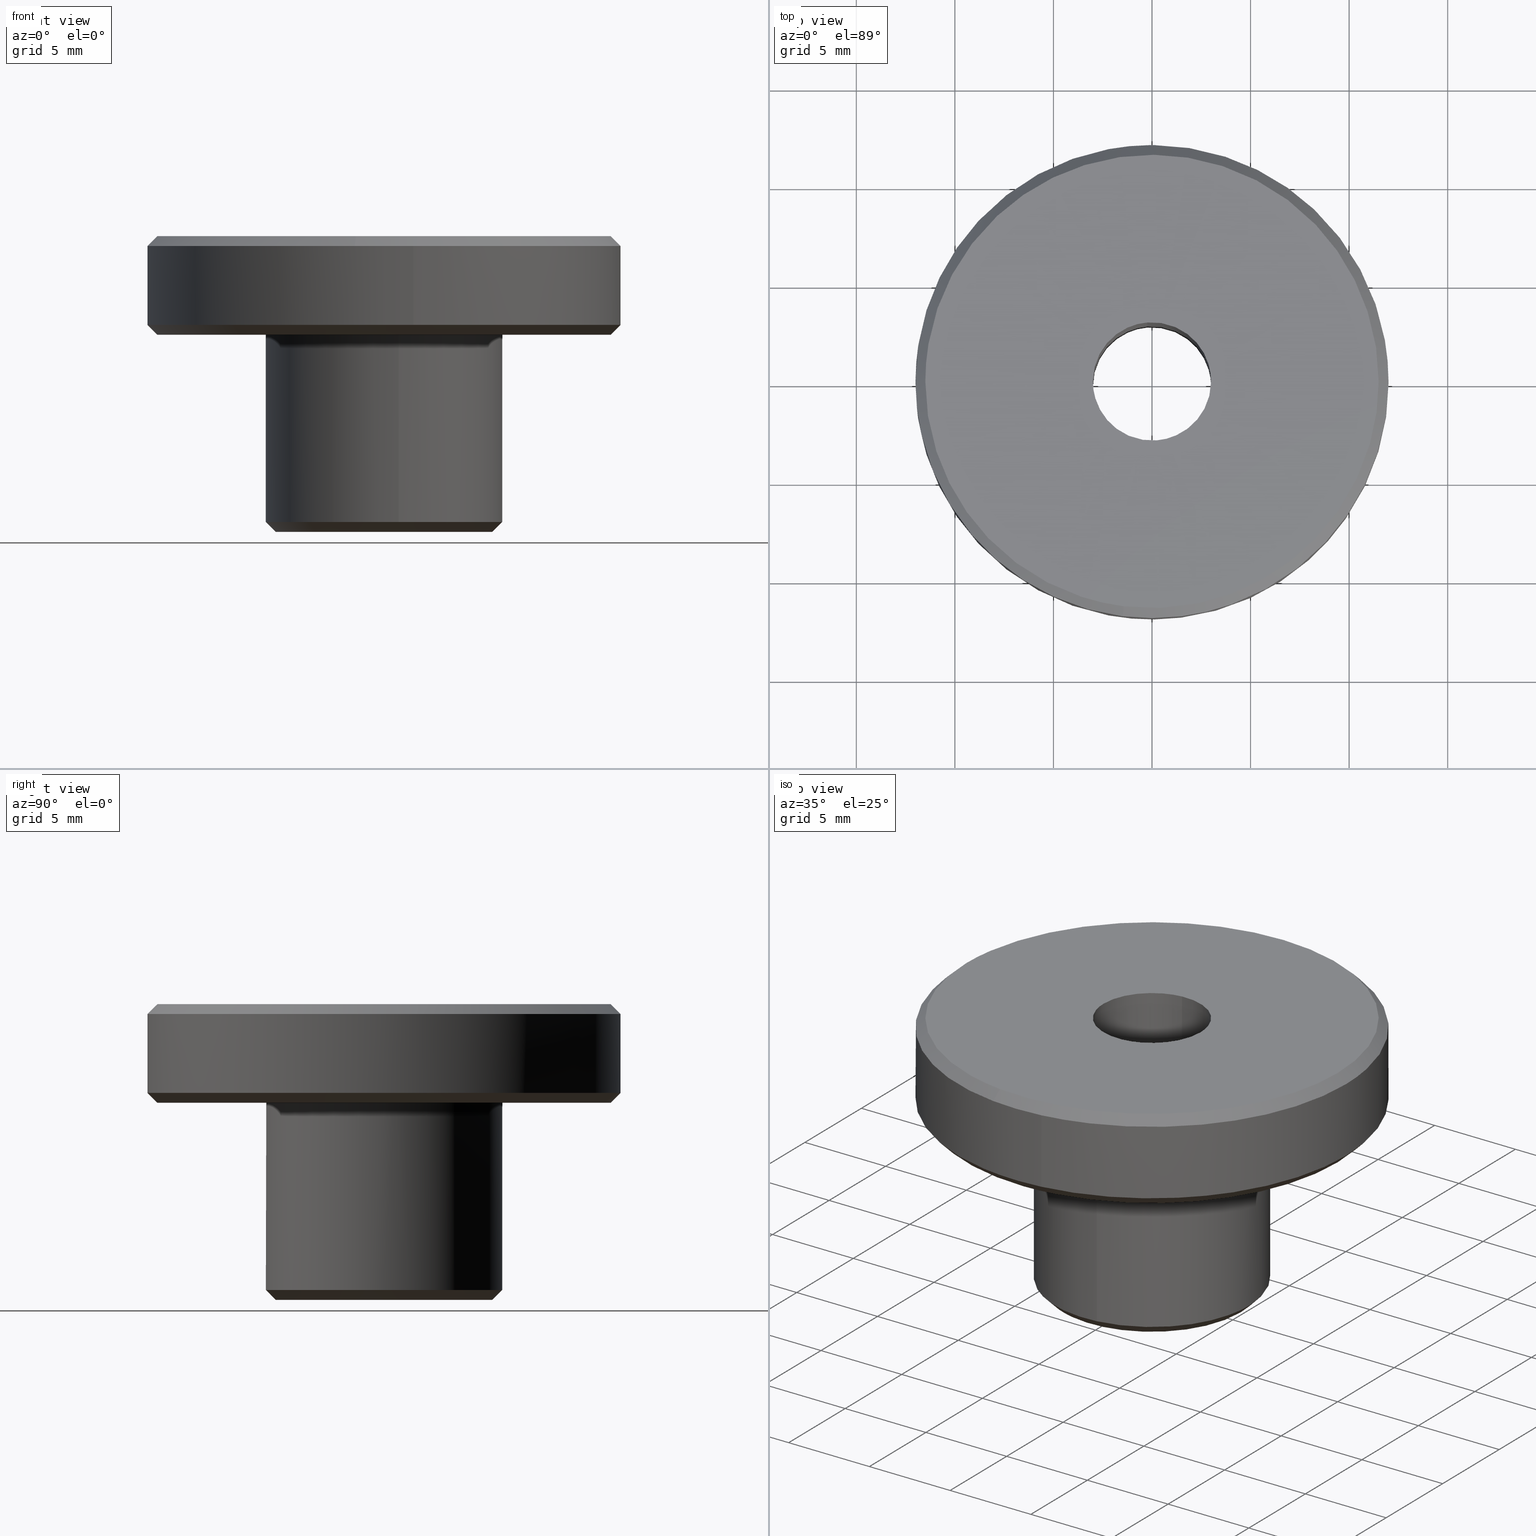
[diagram: canonical four-view strip — front | top / right | iso, engineering-drawing reading convention]
A machine part, canonical four-view strip (front | top / right | iso — engineering-drawing reading convention). The complete STEP part file that produces these views, byte-faithful:
ISO-10303-21;
HEADER;
/****************************************************************
 * Generated by software with PDE/Lib inside                    *
 * PDElib Version 4.4.1-0003, patched  Thursday August 19 11:58 *
 * International Technegroup Inc. (www.iti-oh.com)              *
 ****************************************************************/
FILE_DESCRIPTION((''),'2;1');
FILE_NAME('','2005-07-15T10:43:15',(''),(''),'','CADfix','');
FILE_SCHEMA(('AUTOMOTIVE_DESIGN'));
ENDSEC;
DATA;
#5=APPLICATION_CONTEXT('automotive design');
#6=APPLICATION_PROTOCOL_DEFINITION('Draft International Standard','automotive_design',1998,#5);
#7=PRODUCT_CONTEXT('None',#5,'mechanical');
#8=PRODUCT('knob','','None',(#7));
#9=PRODUCT_RELATED_PRODUCT_CATEGORY('part','description',(#8));
#10=PRODUCT_DEFINITION_FORMATION('None','None',#8);
#11=PRODUCT_DEFINITION_CONTEXT('part definition',#5,'design');
#12=PRODUCT_DEFINITION('None','None',#10,#11);
#18=(NAMED_UNIT(*)PLANE_ANGLE_UNIT()SI_UNIT($,.RADIAN.));
#19=DIMENSIONAL_EXPONENTS(0.0,0.0,0.0,0.0,0.0,0.0,0.0);
#20=PLANE_ANGLE_MEASURE_WITH_UNIT(PLANE_ANGLE_MEASURE(0.017453292500000),#18);
#24=(CONVERSION_BASED_UNIT('DEGREE',#20)NAMED_UNIT(#19)PLANE_ANGLE_UNIT());
#28=(NAMED_UNIT(*)SI_UNIT($,.STERADIAN.)SOLID_ANGLE_UNIT());
#32=(LENGTH_UNIT()NAMED_UNIT(*)SI_UNIT(.MILLI.,.METRE.));
#34=UNCERTAINTY_MEASURE_WITH_UNIT(LENGTH_MEASURE(0.001000000000000),#32,'DISTANCE_ACCURACY_VALUE','');
#36=(GEOMETRIC_REPRESENTATION_CONTEXT(3)GLOBAL_UNCERTAINTY_ASSIGNED_CONTEXT((#34))GLOBAL_UNIT_ASSIGNED_CONTEXT((#24,#28,#32))REPRESENTATION_CONTEXT('None','None'));
#37=AXIS2_PLACEMENT_3D('',#38,#39,#40);
#38=CARTESIAN_POINT('',(0.0,0.0,0.0));
#39=DIRECTION('',(0.0,0.0,1.0));
#40=DIRECTION('',(1.0,0.0,0.0));
#41=ADVANCED_BREP_SHAPE_REPRESENTATION('',(#37,#1111),#36);
#42=PRODUCT_DEFINITION_SHAPE('','',#12);
#43=SHAPE_DEFINITION_REPRESENTATION(#42,#41);
#44=CARTESIAN_POINT('',(-1.425920423892046,-11.398658131320925,15.012499999999999));
#45=CARTESIAN_POINT('',(-11.576330890396889,-10.128887827805423,15.012499999999998));
#46=CARTESIAN_POINT('',(-11.487062591199720,0.100246076537571,15.012499999999999));
#47=CARTESIAN_POINT('',(-11.386816514662147,11.587308667737290,15.012500000000008));
#48=CARTESIAN_POINT('',(0.100246076537571,11.487062591199720,15.012499999999999));
#49=CARTESIAN_POINT('',(-1.491126414984599,-11.919907976771100,14.487187499999999));
#50=CARTESIAN_POINT('',(-12.105705542920147,-10.592072279343483,14.487187500000003));
#51=CARTESIAN_POINT('',(-12.012355088909310,0.104830234716560,14.487187499999999));
#52=CARTESIAN_POINT('',(-11.907524854192753,12.117185323625870,14.487187500000005));
#53=CARTESIAN_POINT('',(0.104830234716560,12.012355088909310,14.487187499999999));
#61=(BOUNDED_SURFACE()B_SPLINE_SURFACE(2,1,((#44,#49),(#45,#50),(#46,#51),(#47,#52),(#48,#53)),.UNSPECIFIED.,.F.,.F.,.U.)B_SPLINE_SURFACE_WITH_KNOTS((3,2,3),(2,2),(0.0,18.311201083861761,38.214680522841952),(0.0,1.0),.UNSPECIFIED.)GEOMETRIC_REPRESENTATION_ITEM()RATIONAL_B_SPLINE_SURFACE(((0.956886118190660,0.956886118190660),(0.730538238691624,0.730538238691624),(1.0,1.0),(0.707106781186548,0.707106781186548),(1.0,1.0)))REPRESENTATION_ITEM('')SURFACE());
#62=CARTESIAN_POINT('',(-1.489536024977577,-11.907194565906501,14.499999999997531));
#63=VERTEX_POINT('',#62);
#64=CARTESIAN_POINT('',(-12.0,0.0,14.500000000000000));
#65=VERTEX_POINT('',#64);
#66=CARTESIAN_POINT('',(-1.489536024977576,-11.907194565906503,14.499999999997526));
#67=CARTESIAN_POINT('',(-12.000000000000002,-10.592383201768106,14.500000000000009));
#68=CARTESIAN_POINT('',(-12.0,0.0,14.500000000000000));
#76=(BOUNDED_CURVE()B_SPLINE_CURVE(2,(#66,#67,#68),.UNSPECIFIED.,.F.,.U.)B_SPLINE_CURVE_WITH_KNOTS((3,3),(0.771473928971248,1.0),.UNSPECIFIED.)CURVE()GEOMETRIC_REPRESENTATION_ITEM()RATIONAL_B_SPLINE_CURVE((0.954005430273657,0.732265053894389,1.0))REPRESENTATION_ITEM(''));
#77=EDGE_CURVE('',#63,#65,#76,.T.);
#78=ORIENTED_EDGE('',*,*,#77,.F.);
#79=CARTESIAN_POINT('',(-1.427472023938972,-11.411061458993739,14.999999999997380));
#80=VERTEX_POINT('',#79);
#81=CARTESIAN_POINT('',(-1.427472023938972,-11.411061458993739,14.999999999997380));
#82=CARTESIAN_POINT('',(-1.489536024977577,-11.907194565906501,14.499999999997531));
#83=QUASI_UNIFORM_CURVE('',1,(#81,#82),.UNSPECIFIED.,.F.,.U.);
#84=EDGE_CURVE('',#80,#63,#83,.T.);
#85=ORIENTED_EDGE('',*,*,#84,.F.);
#86=CARTESIAN_POINT('',(-11.500000000000000,0.0,15.0));
#87=VERTEX_POINT('',#86);
#88=CARTESIAN_POINT('',(-11.500000000000000,0.0,15.0));
#89=CARTESIAN_POINT('',(-11.500000000000000,-10.151033901690676,15.000000000000007));
#90=CARTESIAN_POINT('',(-1.427472023938972,-11.411061458993739,14.999999999997383));
#98=(BOUNDED_CURVE()B_SPLINE_CURVE(2,(#88,#89,#90),.UNSPECIFIED.,.F.,.U.)B_SPLINE_CURVE_WITH_KNOTS((3,3),(0.500000000000000,0.728526071028690),.UNSPECIFIED.)CURVE()GEOMETRIC_REPRESENTATION_ITEM()RATIONAL_B_SPLINE_CURVE((1.0,0.732265053894462,0.954005430273536))REPRESENTATION_ITEM(''));
#99=EDGE_CURVE('',#87,#80,#98,.T.);
#100=ORIENTED_EDGE('',*,*,#99,.F.);
#101=CARTESIAN_POINT('',(0.100355158253234,11.499562115240780,14.999999999997030));
#102=VERTEX_POINT('',#101);
#103=CARTESIAN_POINT('',(0.100355158253234,11.499562115240781,14.999999999997030));
#104=CARTESIAN_POINT('',(0.050178534459976,11.500000000000004,15.000000000000004));
#105=CARTESIAN_POINT('',(0.0,11.500000000000000,15.0));
#106=CARTESIAN_POINT('',(-11.500000000000000,11.500000000000000,14.999999999999995));
#107=CARTESIAN_POINT('',(-11.500000000000000,0.0,15.0));
#115=(BOUNDED_CURVE()B_SPLINE_CURVE(2,(#103,#104,#105,#106,#107),.UNSPECIFIED.,.F.,.U.)B_SPLINE_CURVE_WITH_KNOTS((3,2,3),(0.248460105664342,0.250000000000000,0.500000000000000),.UNSPECIFIED.)CURVE()GEOMETRIC_REPRESENTATION_ITEM()RATIONAL_B_SPLINE_CURVE((0.996414028098853,0.998195901565586,1.0,0.707106781186548,1.0))REPRESENTATION_ITEM(''));
#116=EDGE_CURVE('',#102,#87,#115,.T.);
#117=ORIENTED_EDGE('',*,*,#116,.F.);
#118=CARTESIAN_POINT('',(0.104718426017089,11.999543076774710,14.499999999995021));
#119=VERTEX_POINT('',#118);
#120=CARTESIAN_POINT('',(0.100355158253234,11.499562115240780,14.999999999997030));
#121=CARTESIAN_POINT('',(0.104718426017089,11.999543076774710,14.499999999995021));
#122=QUASI_UNIFORM_CURVE('',1,(#120,#121),.UNSPECIFIED.,.F.,.U.);
#123=EDGE_CURVE('',#102,#119,#122,.T.);
#124=ORIENTED_EDGE('',*,*,#123,.T.);
#125=CARTESIAN_POINT('',(-0.104710458545633,11.999543146295510,14.500000000000030));
#126=VERTEX_POINT('',#125);
#127=CARTESIAN_POINT('',(-0.104710458545633,11.999543146295510,14.500000000000037));
#128=CARTESIAN_POINT('',(-0.052356225903478,12.000000000000004,14.500000000000004));
#129=CARTESIAN_POINT('',(0.0,12.0,14.500000000000000));
#130=CARTESIAN_POINT('',(0.052360209884988,11.999999999999998,14.500000000000002));
#131=CARTESIAN_POINT('',(0.104718426017089,11.999543076774717,14.499999999995023));
#139=(BOUNDED_CURVE()B_SPLINE_CURVE(2,(#127,#128,#129,#130,#131),.UNSPECIFIED.,.F.,.U.)B_SPLINE_CURVE_WITH_KNOTS((3,2,3),(0.248460222619991,0.250000000000000,0.251539894336061),.UNSPECIFIED.)CURVE()GEOMETRIC_REPRESENTATION_ITEM()RATIONAL_B_SPLINE_CURVE((0.996414298767122,0.998196038587652,1.0,0.998195901565114,0.996414028097921))REPRESENTATION_ITEM(''));
#140=EDGE_CURVE('',#126,#119,#139,.T.);
#141=ORIENTED_EDGE('',*,*,#140,.F.);
#142=CARTESIAN_POINT('',(-12.0,0.0,14.500000000000000));
#143=CARTESIAN_POINT('',(-12.0,11.895742425951299,14.499999999999996));
#144=CARTESIAN_POINT('',(-0.104710458545633,11.999543146295510,14.500000000000037));
#152=(BOUNDED_CURVE()B_SPLINE_CURVE(2,(#142,#143,#144),.UNSPECIFIED.,.F.,.U.)B_SPLINE_CURVE_WITH_KNOTS((3,3),(0.0,0.248460222619991),.UNSPECIFIED.)CURVE()GEOMETRIC_REPRESENTATION_ITEM()RATIONAL_B_SPLINE_CURVE((1.0,0.708910742598895,0.996414298767122))REPRESENTATION_ITEM(''));
#153=EDGE_CURVE('',#65,#126,#152,.T.);
#154=ORIENTED_EDGE('',*,*,#153,.F.);
#155=EDGE_LOOP('',(#78,#85,#100,#117,#124,#141,#154));
#156=FACE_OUTER_BOUND('',#155,.T.);
#157=ADVANCED_FACE('',(#156),#61,.T.);
#158=CARTESIAN_POINT('',(0.100246076537571,11.487062591199720,15.012499999999999));
#159=CARTESIAN_POINT('',(11.587308667737290,11.386816514662147,15.012500000000008));
#160=CARTESIAN_POINT('',(11.487062591199720,-0.100246076537571,15.012499999999999));
#161=CARTESIAN_POINT('',(11.386816514662147,-11.587308667737290,15.012500000000008));
#162=CARTESIAN_POINT('',(-0.100246076537571,-11.487062591199720,15.012499999999999));
#163=CARTESIAN_POINT('',(-0.765643701032023,-11.481255754102474,15.012500000000005));
#164=CARTESIAN_POINT('',(-1.425920423892046,-11.398658131320925,15.012499999999999));
#165=CARTESIAN_POINT('',(0.104830234716560,12.012355088909310,14.487187499999999));
#166=CARTESIAN_POINT('',(12.117185323625870,11.907524854192753,14.487187500000005));
#167=CARTESIAN_POINT('',(12.012355088909310,-0.104830234716560,14.487187499999999));
#168=CARTESIAN_POINT('',(11.907524854192753,-12.117185323625870,14.487187500000005));
#169=CARTESIAN_POINT('',(-0.104830234716560,-12.012355088909310,14.487187499999999));
#170=CARTESIAN_POINT('',(-0.800655862659735,-12.006282710648829,14.487187499999999));
#171=CARTESIAN_POINT('',(-1.491126414984599,-11.919907976771100,14.487187499999999));
#179=(BOUNDED_SURFACE()B_SPLINE_SURFACE(2,1,((#158,#165),(#159,#166),(#160,#167),(#161,#168),(#162,#169),(#163,#170),(#164,#171)),.UNSPECIFIED.,.F.,.F.,.U.)B_SPLINE_SURFACE_WITH_KNOTS((3,2,2,3),(2,2),(0.0,19.903479438980181,39.806958877960362,41.399237233078779),(0.0,1.0),.UNSPECIFIED.)GEOMETRIC_REPRESENTATION_ITEM()RATIONAL_B_SPLINE_SURFACE(((1.0,1.0),(0.707106781186548,0.707106781186548),(1.0,1.0),(0.707106781186548,0.707106781186548),(1.0,1.0),(0.976568542494924,0.976568542494924),(0.956886118190660,0.956886118190660)))REPRESENTATION_ITEM('')SURFACE());
#180=CARTESIAN_POINT('',(1.489536029010390,-11.907194565399520,14.500000000000000));
#181=VERTEX_POINT('',#180);
#182=CARTESIAN_POINT('',(1.489536029010390,-11.907194565399525,14.499999999999998));
#183=CARTESIAN_POINT('',(0.747659134501809,-11.999999999999996,14.500000000000007));
#184=CARTESIAN_POINT('',(0.0,-12.0,14.500000000000000));
#185=CARTESIAN_POINT('',(-0.747659130421445,-11.999999999999996,14.499999999999998));
#186=CARTESIAN_POINT('',(-1.489536024977577,-11.907194565906501,14.499999999997529));
#194=(BOUNDED_CURVE()B_SPLINE_CURVE(2,(#182,#183,#184,#185,#186),.UNSPECIFIED.,.F.,.U.)B_SPLINE_CURVE_WITH_KNOTS((3,2,3),(0.728526070914507,0.750000000000000,0.771473928971248),.UNSPECIFIED.)CURVE()GEOMETRIC_REPRESENTATION_ITEM()RATIONAL_B_SPLINE_CURVE((0.954005430051951,0.974841727158312,1.0,0.974841727292159,0.954005430273658))REPRESENTATION_ITEM(''));
#195=EDGE_CURVE('',#181,#63,#194,.T.);
#196=ORIENTED_EDGE('',*,*,#195,.F.);
#197=CARTESIAN_POINT('',(12.0,0.0,14.500000000000000));
#198=VERTEX_POINT('',#197);
#199=CARTESIAN_POINT('',(12.0,0.0,14.500000000000000));
#200=CARTESIAN_POINT('',(12.0,-10.592383194536700,14.500000000000004));
#201=CARTESIAN_POINT('',(1.489536029010390,-11.907194565399520,14.499999999999996));
#209=(BOUNDED_CURVE()B_SPLINE_CURVE(2,(#199,#200,#201),.UNSPECIFIED.,.F.,.U.)B_SPLINE_CURVE_WITH_KNOTS((3,3),(0.500000000000000,0.728526070914508),.UNSPECIFIED.)CURVE()GEOMETRIC_REPRESENTATION_ITEM()RATIONAL_B_SPLINE_CURVE((1.0,0.732265054028234,0.954005430051953))REPRESENTATION_ITEM(''));
#210=EDGE_CURVE('',#198,#181,#209,.T.);
#211=ORIENTED_EDGE('',*,*,#210,.F.);
#212=CARTESIAN_POINT('',(0.104718426017089,11.999543076774710,14.499999999995024));
#213=CARTESIAN_POINT('',(12.0,11.895734527067249,14.500000000000004));
#214=CARTESIAN_POINT('',(12.0,0.0,14.500000000000000));
#222=(BOUNDED_CURVE()B_SPLINE_CURVE(2,(#212,#213,#214),.UNSPECIFIED.,.F.,.U.)B_SPLINE_CURVE_WITH_KNOTS((3,3),(0.251539894336060,0.500000000000000),.UNSPECIFIED.)CURVE()GEOMETRIC_REPRESENTATION_ITEM()RATIONAL_B_SPLINE_CURVE((0.996414028097922,0.708910879621433,1.0))REPRESENTATION_ITEM(''));
#223=EDGE_CURVE('',#119,#198,#222,.T.);
#224=ORIENTED_EDGE('',*,*,#223,.F.);
#225=ORIENTED_EDGE('',*,*,#123,.F.);
#226=CARTESIAN_POINT('',(11.500000000000000,0.0,15.0));
#227=VERTEX_POINT('',#226);
#228=CARTESIAN_POINT('',(11.500000000000000,0.0,15.0));
#229=CARTESIAN_POINT('',(11.499999999999998,11.400078921798803,15.000000000000002));
#230=CARTESIAN_POINT('',(0.100355158253234,11.499562115240776,14.999999999997025));
#238=(BOUNDED_CURVE()B_SPLINE_CURVE(2,(#228,#229,#230),.UNSPECIFIED.,.F.,.U.)B_SPLINE_CURVE_WITH_KNOTS((3,3),(0.0,0.248460105664342),.UNSPECIFIED.)CURVE()GEOMETRIC_REPRESENTATION_ITEM()RATIONAL_B_SPLINE_CURVE((1.0,0.708910879620962,0.996414028098852))REPRESENTATION_ITEM(''));
#239=EDGE_CURVE('',#227,#102,#238,.T.);
#240=ORIENTED_EDGE('',*,*,#239,.F.);
#241=CARTESIAN_POINT('',(-1.427472023938972,-11.411061458993746,14.999999999997378));
#242=CARTESIAN_POINT('',(-0.716506666656032,-11.500000000000002,15.0));
#243=CARTESIAN_POINT('',(0.0,-11.500000000000000,15.0));
#244=CARTESIAN_POINT('',(11.500000000000000,-11.500000000000000,14.999999999999995));
#245=CARTESIAN_POINT('',(11.500000000000000,0.0,15.0));
#253=(BOUNDED_CURVE()B_SPLINE_CURVE(2,(#241,#242,#243,#244,#245),.UNSPECIFIED.,.F.,.U.)B_SPLINE_CURVE_WITH_KNOTS((3,2,3),(0.728526071028690,0.750000000000000,1.0),.UNSPECIFIED.)CURVE()GEOMETRIC_REPRESENTATION_ITEM()RATIONAL_B_SPLINE_CURVE((0.954005430273537,0.974841727292086,1.0,0.707106781186548,1.0))REPRESENTATION_ITEM(''));
#254=EDGE_CURVE('',#80,#227,#253,.T.);
#255=ORIENTED_EDGE('',*,*,#254,.F.);
#256=ORIENTED_EDGE('',*,*,#84,.T.);
#257=EDGE_LOOP('',(#196,#211,#224,#225,#240,#255,#256));
#258=FACE_OUTER_BOUND('',#257,.T.);
#259=ADVANCED_FACE('',(#258),#179,.T.);
#260=CARTESIAN_POINT('',(9.406724469765599,-6.593647776451987,9.987500000000001));
#261=CARTESIAN_POINT('',(11.519179152623428,-3.579947343820999,9.987499999999999));
#262=CARTESIAN_POINT('',(11.487062591199541,0.100246076537569,9.987499999999999));
#263=CARTESIAN_POINT('',(11.386816514661971,11.587308667737110,9.987499999999999));
#264=CARTESIAN_POINT('',(-0.100246076537569,11.487062591199541,9.987499999999999));
#265=CARTESIAN_POINT('',(-11.587308667737110,11.386816514661971,9.987499999999999));
#266=CARTESIAN_POINT('',(-11.487062591199541,-0.100246076537569,9.987499999999999));
#267=CARTESIAN_POINT('',(-11.386816514661971,-11.587308667737110,9.987499999999999));
#268=CARTESIAN_POINT('',(0.100246076537569,-11.487062591199541,9.987499999999999));
#269=CARTESIAN_POINT('',(9.836885074599064,-6.895169047186952,10.512812500000004));
#270=CARTESIAN_POINT('',(12.045940310282912,-3.743654946785198,10.512812500000003));
#271=CARTESIAN_POINT('',(12.012355088909260,0.104830234716559,10.512812500000001));
#272=CARTESIAN_POINT('',(11.907524854192694,12.117185323625815,10.512812500000003));
#273=CARTESIAN_POINT('',(-0.104830234716559,12.012355088909260,10.512812500000001));
#274=CARTESIAN_POINT('',(-12.117185323625815,11.907524854192694,10.512812500000003));
#275=CARTESIAN_POINT('',(-12.012355088909260,-0.104830234716559,10.512812500000001));
#276=CARTESIAN_POINT('',(-11.907524854192694,-12.117185323625815,10.512812500000003));
#277=CARTESIAN_POINT('',(0.104830234716559,-12.012355088909260,10.512812500000001));
#285=(BOUNDED_SURFACE()B_SPLINE_SURFACE(2,1,((#260,#269),(#261,#270),(#262,#271),(#263,#272),(#264,#273),(#265,#274),(#266,#275),(#267,#276),(#268,#277)),.UNSPECIFIED.,.F.,.F.,.U.)B_SPLINE_SURFACE_WITH_KNOTS((3,2,2,2,3),(2,2),(0.0,7.961391775592033,27.864871214572119,47.768350653552197,67.671830092532289),(0.0,1.0),.UNSPECIFIED.)GEOMETRIC_REPRESENTATION_ITEM()RATIONAL_B_SPLINE_SURFACE(((0.859411254969543,0.859411254969543),(0.882842712474619,0.882842712474619),(1.0,1.0),(0.707106781186548,0.707106781186548),(1.0,1.0),(0.707106781186548,0.707106781186548),(1.0,1.0),(0.707106781186548,0.707106781186548),(1.0,1.0)))REPRESENTATION_ITEM('')SURFACE());
#286=CARTESIAN_POINT('',(11.500000000000000,0.0,10.0));
#287=VERTEX_POINT('',#286);
#288=CARTESIAN_POINT('',(9.416960296174537,-6.600822583608174,10.000000000000030));
#289=VERTEX_POINT('',#288);
#290=CARTESIAN_POINT('',(11.500000000000000,0.0,10.0));
#291=CARTESIAN_POINT('',(11.500000000000000,-3.629086570737413,10.000000000000002));
#292=CARTESIAN_POINT('',(9.416960296174537,-6.600822583608175,10.000000000000030));
#300=(BOUNDED_CURVE()B_SPLINE_CURVE(2,(#290,#291,#292),.UNSPECIFIED.,.F.,.U.)B_SPLINE_CURVE_WITH_KNOTS((3,3),(0.0,0.098673726202874),.UNSPECIFIED.)CURVE()GEOMETRIC_REPRESENTATION_ITEM()RATIONAL_B_SPLINE_CURVE((1.0,0.884396538880492,0.860049271925871))REPRESENTATION_ITEM(''));
#301=EDGE_CURVE('',#287,#289,#300,.T.);
#302=ORIENTED_EDGE('',*,*,#301,.F.);
#303=CARTESIAN_POINT('',(-11.500000000000000,0.0,10.0));
#304=VERTEX_POINT('',#303);
#305=CARTESIAN_POINT('',(-11.500000000000000,0.0,10.0));
#306=CARTESIAN_POINT('',(-11.500000000000000,11.500000000000000,10.000000000000002));
#307=CARTESIAN_POINT('',(0.0,11.500000000000000,10.0));
#308=CARTESIAN_POINT('',(11.500000000000000,11.500000000000000,10.000000000000002));
#309=CARTESIAN_POINT('',(11.500000000000000,0.0,10.0));
#317=(BOUNDED_CURVE()B_SPLINE_CURVE(2,(#305,#306,#307,#308,#309),.UNSPECIFIED.,.F.,.U.)B_SPLINE_CURVE_WITH_KNOTS((3,2,3),(0.500000000000000,0.750000000000000,1.0),.UNSPECIFIED.)CURVE()GEOMETRIC_REPRESENTATION_ITEM()RATIONAL_B_SPLINE_CURVE((1.0,0.707106781186548,1.0,0.707106781186548,1.0))REPRESENTATION_ITEM(''));
#318=EDGE_CURVE('',#304,#287,#317,.T.);
#319=ORIENTED_EDGE('',*,*,#318,.F.);
#320=CARTESIAN_POINT('',(0.100355158253233,-11.499562115240730,10.000000000003020));
#321=VERTEX_POINT('',#320);
#322=CARTESIAN_POINT('',(0.100355158253233,-11.499562115240732,10.000000000003018));
#323=CARTESIAN_POINT('',(0.050178534459976,-11.500000000000004,10.0));
#324=CARTESIAN_POINT('',(0.0,-11.500000000000000,10.0));
#325=CARTESIAN_POINT('',(-11.500000000000000,-11.500000000000000,10.000000000000002));
#326=CARTESIAN_POINT('',(-11.500000000000000,0.0,10.0));
#334=(BOUNDED_CURVE()B_SPLINE_CURVE(2,(#322,#323,#324,#325,#326),.UNSPECIFIED.,.F.,.U.)B_SPLINE_CURVE_WITH_KNOTS((3,2,3),(0.248460105664342,0.250000000000000,0.500000000000000),.UNSPECIFIED.)CURVE()GEOMETRIC_REPRESENTATION_ITEM()RATIONAL_B_SPLINE_CURVE((0.996414028098853,0.998195901565586,1.0,0.707106781186548,1.0))REPRESENTATION_ITEM(''));
#335=EDGE_CURVE('',#321,#304,#334,.T.);
#336=ORIENTED_EDGE('',*,*,#335,.F.);
#337=CARTESIAN_POINT('',(0.104718425980843,-11.999543076770090,10.500000000000060));
#338=VERTEX_POINT('',#337);
#339=CARTESIAN_POINT('',(0.100355158253233,-11.499562115240730,10.000000000003020));
#340=CARTESIAN_POINT('',(0.104718425980843,-11.999543076770090,10.500000000000060));
#341=QUASI_UNIFORM_CURVE('',1,(#339,#340),.UNSPECIFIED.,.F.,.U.);
#342=EDGE_CURVE('',#321,#338,#341,.T.);
#343=ORIENTED_EDGE('',*,*,#342,.T.);
#344=CARTESIAN_POINT('',(-12.0,0.0,10.500000000000000));
#345=VERTEX_POINT('',#344);
#346=CARTESIAN_POINT('',(-12.0,0.0,10.500000000000000));
#347=CARTESIAN_POINT('',(-12.0,-12.0,10.500000000000002));
#348=CARTESIAN_POINT('',(0.0,-12.0,10.500000000000000));
#349=CARTESIAN_POINT('',(0.052360209848779,-12.000000000000004,10.500000000000002));
#350=CARTESIAN_POINT('',(0.104718425980843,-11.999543076770081,10.500000000000066));
#358=(BOUNDED_CURVE()B_SPLINE_CURVE(2,(#346,#347,#348,#349,#350),.UNSPECIFIED.,.F.,.U.)B_SPLINE_CURVE_WITH_KNOTS((3,2,3),(0.0,0.250000000000000,0.251539894334998),.UNSPECIFIED.)CURVE()GEOMETRIC_REPRESENTATION_ITEM()RATIONAL_B_SPLINE_CURVE((1.0,0.707106781186548,1.0,0.998195901566360,0.996414028100381))REPRESENTATION_ITEM(''));
#359=EDGE_CURVE('',#345,#338,#358,.T.);
#360=ORIENTED_EDGE('',*,*,#359,.F.);
#361=CARTESIAN_POINT('',(-0.104709888522540,11.999543151269251,10.500000000000000));
#362=VERTEX_POINT('',#361);
#363=CARTESIAN_POINT('',(-0.104709888522540,11.999543151269243,10.500000000000002));
#364=CARTESIAN_POINT('',(-12.000000000000002,11.895742991064994,10.500000000000002));
#365=CARTESIAN_POINT('',(-12.0,0.0,10.500000000000000));
#373=(BOUNDED_CURVE()B_SPLINE_CURVE(2,(#363,#364,#365),.UNSPECIFIED.,.F.,.U.)B_SPLINE_CURVE_WITH_KNOTS((3,3),(0.751539769012567,1.0),.UNSPECIFIED.)CURVE()GEOMETRIC_REPRESENTATION_ITEM()RATIONAL_B_SPLINE_CURVE((0.996414318131745,0.708910732795827,1.0))REPRESENTATION_ITEM(''));
#374=EDGE_CURVE('',#362,#345,#373,.T.);
#375=ORIENTED_EDGE('',*,*,#374,.F.);
#376=CARTESIAN_POINT('',(12.0,0.0,10.500000000000000));
#377=VERTEX_POINT('',#376);
#378=CARTESIAN_POINT('',(12.0,0.0,10.500000000000000));
#379=CARTESIAN_POINT('',(12.0,12.0,10.500000000000002));
#380=CARTESIAN_POINT('',(0.0,12.0,10.500000000000000));
#381=CARTESIAN_POINT('',(-0.052355940875657,11.999999999999996,10.499999999999998));
#382=CARTESIAN_POINT('',(-0.104709888522540,11.999543151269243,10.500000000000002));
#390=(BOUNDED_CURVE()B_SPLINE_CURVE(2,(#378,#379,#380,#381,#382),.UNSPECIFIED.,.F.,.U.)B_SPLINE_CURVE_WITH_KNOTS((3,2,3),(0.500000000000000,0.750000000000000,0.751539769012567),.UNSPECIFIED.)CURVE()GEOMETRIC_REPRESENTATION_ITEM()RATIONAL_B_SPLINE_CURVE((1.0,0.707106781186548,1.0,0.998196048390720,0.996414318131745))REPRESENTATION_ITEM(''));
#391=EDGE_CURVE('',#377,#362,#390,.T.);
#392=ORIENTED_EDGE('',*,*,#391,.F.);
#393=CARTESIAN_POINT('',(9.826393352526885,-6.887814869856838,10.500000000000259));
#394=VERTEX_POINT('',#393);
#395=CARTESIAN_POINT('',(9.826393352526885,-6.887814869856837,10.500000000000263));
#396=CARTESIAN_POINT('',(11.999999999999998,-3.786872943384453,10.500000000000002));
#397=CARTESIAN_POINT('',(12.0,0.0,10.500000000000000));
#405=(BOUNDED_CURVE()B_SPLINE_CURVE(2,(#395,#396,#397),.UNSPECIFIED.,.F.,.U.)B_SPLINE_CURVE_WITH_KNOTS((3,3),(0.401326273796982,0.500000000000000),.UNSPECIFIED.)CURVE()GEOMETRIC_REPRESENTATION_ITEM()RATIONAL_B_SPLINE_CURVE((0.860049271925800,0.884396538880323,1.0))REPRESENTATION_ITEM(''));
#406=EDGE_CURVE('',#394,#377,#405,.T.);
#407=ORIENTED_EDGE('',*,*,#406,.F.);
#408=CARTESIAN_POINT('',(9.416960296174537,-6.600822583608174,10.000000000000030));
#409=CARTESIAN_POINT('',(9.826393352526885,-6.887814869856838,10.500000000000259));
#410=QUASI_UNIFORM_CURVE('',1,(#408,#409),.UNSPECIFIED.,.F.,.U.);
#411=EDGE_CURVE('',#289,#394,#410,.T.);
#412=ORIENTED_EDGE('',*,*,#411,.F.);
#413=EDGE_LOOP('',(#302,#319,#336,#343,#360,#375,#392,#407,#412));
#414=FACE_OUTER_BOUND('',#413,.T.);
#415=ADVANCED_FACE('',(#414),#285,.T.);
#416=CARTESIAN_POINT('',(0.100246076537569,-11.487062591199541,9.987499999999999));
#417=CARTESIAN_POINT('',(6.012851147515325,-11.435464068446150,9.987499999999999));
#418=CARTESIAN_POINT('',(9.406724469765599,-6.593647776451987,9.987500000000001));
#419=CARTESIAN_POINT('',(0.104830234716559,-12.012355088909260,10.512812500000001));
#420=CARTESIAN_POINT('',(6.287813138238249,-11.958397014557699,10.512812500000004));
#421=CARTESIAN_POINT('',(9.836885074599064,-6.895169047186952,10.512812500000004));
#429=(BOUNDED_SURFACE()B_SPLINE_SURFACE(2,1,((#416,#419),(#417,#420),(#418,#421)),.UNSPECIFIED.,.F.,.F.,.U.)B_SPLINE_SURFACE_WITH_KNOTS((3,3),(2,2),(0.0,11.860688764435860),(0.0,1.0),.UNSPECIFIED.)GEOMETRIC_REPRESENTATION_ITEM()RATIONAL_B_SPLINE_SURFACE(((1.0,1.0),(0.824264068711928,0.824264068711928),(0.859411254969543,0.859411254969543)))REPRESENTATION_ITEM('')SURFACE());
#430=CARTESIAN_POINT('',(9.416960296174537,-6.600822583608174,10.000000000000032));
#431=CARTESIAN_POINT('',(6.019393967060633,-11.447907446082395,9.999999999999998));
#432=CARTESIAN_POINT('',(0.100355158253233,-11.499562115240730,10.000000000003018));
#440=(BOUNDED_CURVE()B_SPLINE_CURVE(2,(#430,#431,#432),.UNSPECIFIED.,.F.,.U.)B_SPLINE_CURVE_WITH_KNOTS((3,3),(0.098673726202873,0.248460105664342),.UNSPECIFIED.)CURVE()GEOMETRIC_REPRESENTATION_ITEM()RATIONAL_B_SPLINE_CURVE((0.860049271925871,0.823090203820786,0.996414028098853))REPRESENTATION_ITEM(''));
#441=EDGE_CURVE('',#289,#321,#440,.T.);
#442=ORIENTED_EDGE('',*,*,#441,.F.);
#443=ORIENTED_EDGE('',*,*,#411,.T.);
#444=CARTESIAN_POINT('',(1.489527852717329,-11.907195588211000,10.500000000000000));
#445=VERTEX_POINT('',#444);
#446=CARTESIAN_POINT('',(1.489527852717330,-11.907195588211003,10.500000000000000));
#447=CARTESIAN_POINT('',(6.771178976043741,-11.246488673789804,10.499999999999998));
#448=CARTESIAN_POINT('',(9.826393352526885,-6.887814869856837,10.500000000000263));
#456=(BOUNDED_CURVE()B_SPLINE_CURVE(2,(#446,#447,#448),.UNSPECIFIED.,.F.,.U.)B_SPLINE_CURVE_WITH_KNOTS((3,3),(0.271473813224281,0.401326273796981),.UNSPECIFIED.)CURVE()GEOMETRIC_REPRESENTATION_ITEM()RATIONAL_B_SPLINE_CURVE((0.954005654893896,0.828008802350745,0.860049271925800))REPRESENTATION_ITEM(''));
#457=EDGE_CURVE('',#445,#394,#456,.T.);
#458=ORIENTED_EDGE('',*,*,#457,.F.);
#459=CARTESIAN_POINT('',(0.104718425980843,-11.999543076770088,10.500000000000062));
#460=CARTESIAN_POINT('',(0.799797775870970,-11.993477211179432,10.499999999999998));
#461=CARTESIAN_POINT('',(1.489527852717330,-11.907195588211003,10.500000000000000));
#469=(BOUNDED_CURVE()B_SPLINE_CURVE(2,(#459,#460,#461),.UNSPECIFIED.,.F.,.U.)B_SPLINE_CURVE_WITH_KNOTS((3,3),(0.251539894334998,0.271473813224281),.UNSPECIFIED.)CURVE()GEOMETRIC_REPRESENTATION_ITEM()RATIONAL_B_SPLINE_CURVE((0.996414028100382,0.973347691446943,0.954005654893896))REPRESENTATION_ITEM(''));
#470=EDGE_CURVE('',#338,#445,#469,.T.);
#471=ORIENTED_EDGE('',*,*,#470,.F.);
#472=ORIENTED_EDGE('',*,*,#342,.F.);
#473=EDGE_LOOP('',(#442,#443,#458,#471,#472));
#474=FACE_OUTER_BOUND('',#473,.T.);
#475=ADVANCED_FACE('',(#474),#429,.T.);
#476=CARTESIAN_POINT('',(-2.218132183033460,-5.019217655032625,-0.012499999999999));
#477=CARTESIAN_POINT('',(-1.135599143609664,-5.497619178731310,-0.012499999999999));
#478=CARTESIAN_POINT('',(0.047886863547327,-5.487291052814638,-0.012499999999999));
#479=CARTESIAN_POINT('',(5.535177916361964,-5.439404189267312,-0.012499999999999));
#480=CARTESIAN_POINT('',(5.487291052814638,0.047886863547327,-0.012499999999999));
#481=CARTESIAN_POINT('',(5.439404189267312,5.535177916361964,-0.012499999999999));
#482=CARTESIAN_POINT('',(-0.047886863547327,5.487291052814638,-0.012499999999999));
#483=CARTESIAN_POINT('',(-2.430471602149591,-5.499701987499018,0.512812499999944));
#484=CARTESIAN_POINT('',(-1.244308833837901,-6.023900376877514,0.512812499999944));
#485=CARTESIAN_POINT('',(0.052471021726316,-6.012583550524287,0.512812499999944));
#486=CARTESIAN_POINT('',(6.065054572250603,-5.960112528797970,0.512812499999944));
#487=CARTESIAN_POINT('',(6.012583550524287,0.052471021726316,0.512812499999944));
#488=CARTESIAN_POINT('',(5.960112528797970,6.065054572250603,0.512812499999944));
#489=CARTESIAN_POINT('',(-0.052471021726316,6.012583550524287,0.512812499999944));
#497=(BOUNDED_SURFACE()B_SPLINE_SURFACE(2,1,((#476,#483),(#477,#484),(#478,#485),(#479,#486),(#480,#487),(#481,#488),(#482,#489)),.UNSPECIFIED.,.F.,.F.,.U.)B_SPLINE_SURFACE_WITH_KNOTS((3,2,2,3),(2,2),(0.0,2.789459103767254,12.751813045793160,22.714166987819059),(0.0,1.0),.UNSPECIFIED.)GEOMETRIC_REPRESENTATION_ITEM()RATIONAL_B_SPLINE_SURFACE(((0.881905454174416,0.881905454174416),(0.917989898732233,0.917989898732233),(1.0,1.0),(0.707106781186548,0.707106781186548),(1.0,1.0),(0.707106781186548,0.707106781186548),(1.0,1.0)))REPRESENTATION_ITEM('')SURFACE());
#498=CARTESIAN_POINT('',(-2.425292591938250,-5.487982857435078,0.500000000000932));
#499=VERTEX_POINT('',#498);
#500=CARTESIAN_POINT('',(0.744764759161742,-5.953597689926655,0.499999999999930));
#501=VERTEX_POINT('',#500);
#502=CARTESIAN_POINT('',(-2.425292591938249,-5.487982857435078,0.500000000000932));
#503=CARTESIAN_POINT('',(-1.266693703523404,-6.0,0.499999999999945));
#504=CARTESIAN_POINT('',(0.0,-6.0,0.499999999999945));
#505=CARTESIAN_POINT('',(0.373827919500460,-6.0,0.499999999999945));
#506=CARTESIAN_POINT('',(0.744764759161742,-5.953597689926655,0.499999999999930));
#514=(BOUNDED_CURVE()B_SPLINE_CURVE(2,(#502,#503,#504,#505,#506),.UNSPECIFIED.,.F.,.U.)B_SPLINE_CURVE_WITH_KNOTS((3,2,3),(0.181361578459330,0.250000000000000,0.271473836814868),.UNSPECIFIED.)CURVE()GEOMETRIC_REPRESENTATION_ITEM()RATIONAL_B_SPLINE_CURVE((0.883326595751248,0.919585087122714,1.0,0.974841835260074,0.954005609113641))REPRESENTATION_ITEM(''));
#515=EDGE_CURVE('',#499,#501,#514,.T.);
#516=ORIENTED_EDGE('',*,*,#515,.F.);
#517=CARTESIAN_POINT('',(-2.223184875959487,-5.030650952643277,2.338029E-012));
#518=VERTEX_POINT('',#517);
#519=CARTESIAN_POINT('',(-2.223184875959487,-5.030650952643277,2.338029E-012));
#520=CARTESIAN_POINT('',(-2.425292591938250,-5.487982857435078,0.500000000000932));
#521=QUASI_UNIFORM_CURVE('',1,(#519,#520),.UNSPECIFIED.,.F.,.U.);
#522=EDGE_CURVE('',#518,#499,#521,.T.);
#523=ORIENTED_EDGE('',*,*,#522,.F.);
#524=CARTESIAN_POINT('',(5.500000000000000,0.0,0.0));
#525=VERTEX_POINT('',#524);
#526=CARTESIAN_POINT('',(5.500000000000000,0.0,0.0));
#527=CARTESIAN_POINT('',(5.500000000000001,-5.500000000000001,0.0));
#528=CARTESIAN_POINT('',(0.0,-5.500000000000000,0.0));
#529=CARTESIAN_POINT('',(-1.161135894914166,-5.500000000000000,0.0));
#530=CARTESIAN_POINT('',(-2.223184875959488,-5.030650952643277,2.338029E-012));
#538=(BOUNDED_CURVE()B_SPLINE_CURVE(2,(#526,#527,#528,#529,#530),.UNSPECIFIED.,.F.,.U.)B_SPLINE_CURVE_WITH_KNOTS((3,2,3),(0.500000000000000,0.750000000000000,0.818638421541633),.UNSPECIFIED.)CURVE()GEOMETRIC_REPRESENTATION_ITEM()RATIONAL_B_SPLINE_CURVE((1.0,0.707106781186548,1.0,0.919585087121586,0.883326595750231))REPRESENTATION_ITEM(''));
#539=EDGE_CURVE('',#525,#518,#538,.T.);
#540=ORIENTED_EDGE('',*,*,#539,.F.);
#541=CARTESIAN_POINT('',(-0.047995945248909,5.499790576853938,1.065194E-012));
#542=VERTEX_POINT('',#541);
#543=CARTESIAN_POINT('',(-0.047995945248909,5.499790576853938,1.065194E-012));
#544=CARTESIAN_POINT('',(-0.023998429521703,5.500000000000001,0.0));
#545=CARTESIAN_POINT('',(0.0,5.500000000000000,0.0));
#546=CARTESIAN_POINT('',(5.500000000000001,5.500000000000001,0.0));
#547=CARTESIAN_POINT('',(5.500000000000000,0.0,0.0));
#555=(BOUNDED_CURVE()B_SPLINE_CURVE(2,(#543,#544,#545,#546,#547),.UNSPECIFIED.,.F.,.U.)B_SPLINE_CURVE_WITH_KNOTS((3,2,3),(0.248460105664510,0.250000000000000,0.500000000000000),.UNSPECIFIED.)CURVE()GEOMETRIC_REPRESENTATION_ITEM()RATIONAL_B_SPLINE_CURVE((0.996414028099243,0.998195901565783,1.0,0.707106781186548,1.0))REPRESENTATION_ITEM(''));
#556=EDGE_CURVE('',#542,#525,#555,.T.);
#557=ORIENTED_EDGE('',*,*,#556,.F.);
#558=CARTESIAN_POINT('',(-0.052357016216925,5.999771557553567,0.499999999999151));
#559=VERTEX_POINT('',#558);
#560=CARTESIAN_POINT('',(-0.047995945248909,5.499790576853938,1.065194E-012));
#561=CARTESIAN_POINT('',(-0.052357016216925,5.999771557553567,0.499999999999151));
#562=QUASI_UNIFORM_CURVE('',1,(#560,#561),.UNSPECIFIED.,.F.,.U.);
#563=EDGE_CURVE('',#542,#559,#562,.T.);
#564=ORIENTED_EDGE('',*,*,#563,.T.);
#565=CARTESIAN_POINT('',(6.0,0.0,0.499999999999945));
#566=VERTEX_POINT('',#565);
#567=CARTESIAN_POINT('',(6.0,0.0,0.499999999999945));
#568=CARTESIAN_POINT('',(6.0,6.0,0.499999999999945));
#569=CARTESIAN_POINT('',(0.0,6.0,0.499999999999945));
#570=CARTESIAN_POINT('',(-0.026179006474824,6.000000000000001,0.499999999999945));
#571=CARTESIAN_POINT('',(-0.052357016216925,5.999771557553567,0.499999999999151));
#579=(BOUNDED_CURVE()B_SPLINE_CURVE(2,(#567,#568,#569,#570,#571),.UNSPECIFIED.,.F.,.U.)B_SPLINE_CURVE_WITH_KNOTS((3,2,3),(0.500000000000000,0.750000000000000,0.751539829841568),.UNSPECIFIED.)CURVE()GEOMETRIC_REPRESENTATION_ITEM()RATIONAL_B_SPLINE_CURVE((1.0,0.707106781186548,1.0,0.998195977125113,0.996414177356287))REPRESENTATION_ITEM(''));
#580=EDGE_CURVE('',#566,#559,#579,.T.);
#581=ORIENTED_EDGE('',*,*,#580,.F.);
#582=CARTESIAN_POINT('',(0.744764759161742,-5.953597689926655,0.499999999999930));
#583=CARTESIAN_POINT('',(6.000000000000001,-5.296194517539298,0.499999999999945));
#584=CARTESIAN_POINT('',(6.0,0.0,0.499999999999945));
#592=(BOUNDED_CURVE()B_SPLINE_CURVE(2,(#582,#583,#584),.UNSPECIFIED.,.F.,.U.)B_SPLINE_CURVE_WITH_KNOTS((3,3),(0.271473836814868,0.500000000000000),.UNSPECIFIED.)CURVE()GEOMETRIC_REPRESENTATION_ITEM()RATIONAL_B_SPLINE_CURVE((0.954005609113641,0.732264945926474,1.0))REPRESENTATION_ITEM(''));
#593=EDGE_CURVE('',#501,#566,#592,.T.);
#594=ORIENTED_EDGE('',*,*,#593,.F.);
#595=EDGE_LOOP('',(#516,#523,#540,#557,#564,#581,#594));
#596=FACE_OUTER_BOUND('',#595,.T.);
#597=ADVANCED_FACE('',(#596),#497,.T.);
#598=CARTESIAN_POINT('',(-0.047886863547327,5.487291052814638,-0.012499999999999));
#599=CARTESIAN_POINT('',(-5.535177916361964,5.439404189267312,-0.012499999999999));
#600=CARTESIAN_POINT('',(-5.487291052814638,-0.047886863547327,-0.012499999999999));
#601=CARTESIAN_POINT('',(-5.456395742852565,-3.588138727427808,-0.012499999999999));
#602=CARTESIAN_POINT('',(-2.218132183033460,-5.019217655032625,-0.012499999999999));
#603=CARTESIAN_POINT('',(-0.052471021726316,6.012583550524287,0.512812499999944));
#604=CARTESIAN_POINT('',(-6.065054572250603,5.960112528797970,0.512812499999944));
#605=CARTESIAN_POINT('',(-6.012583550524287,-0.052471021726316,0.512812499999944));
#606=CARTESIAN_POINT('',(-5.978730665616528,-3.931627406289205,0.512812499999944));
#607=CARTESIAN_POINT('',(-2.430471602149591,-5.499701987499018,0.512812499999944));
#615=(BOUNDED_SURFACE()B_SPLINE_SURFACE(2,1,((#598,#603),(#599,#604),(#600,#605),(#601,#606),(#602,#607)),.UNSPECIFIED.,.F.,.F.,.U.)B_SPLINE_SURFACE_WITH_KNOTS((3,2,3),(2,2),(0.0,9.962353942025903,17.135248780284549),(0.0,1.0),.UNSPECIFIED.)GEOMETRIC_REPRESENTATION_ITEM()RATIONAL_B_SPLINE_SURFACE(((1.0,1.0),(0.707106781186548,0.707106781186548),(1.0,1.0),(0.789116882454314,0.789116882454314),(0.881905454174416,0.881905454174416)))REPRESENTATION_ITEM('')SURFACE());
#616=CARTESIAN_POINT('',(-6.0,0.0,0.499999999999945));
#617=VERTEX_POINT('',#616);
#618=CARTESIAN_POINT('',(-6.0,0.0,0.499999999999945));
#619=CARTESIAN_POINT('',(-6.000000000000001,-3.908220015533247,0.499999999999945));
#620=CARTESIAN_POINT('',(-2.425292591938249,-5.487982857435078,0.500000000000932));
#628=(BOUNDED_CURVE()B_SPLINE_CURVE(2,(#618,#619,#620),.UNSPECIFIED.,.F.,.U.)B_SPLINE_CURVE_WITH_KNOTS((3,3),(0.0,0.181361578459330),.UNSPECIFIED.)CURVE()GEOMETRIC_REPRESENTATION_ITEM()RATIONAL_B_SPLINE_CURVE((1.0,0.787521694063833,0.883326595751248))REPRESENTATION_ITEM(''));
#629=EDGE_CURVE('',#617,#499,#628,.T.);
#630=ORIENTED_EDGE('',*,*,#629,.F.);
#631=CARTESIAN_POINT('',(-0.052357016216925,5.999771557553567,0.499999999999151));
#632=CARTESIAN_POINT('',(-6.000000000000001,5.947869441422111,0.499999999999945));
#633=CARTESIAN_POINT('',(-6.0,0.0,0.499999999999945));
#641=(BOUNDED_CURVE()B_SPLINE_CURVE(2,(#631,#632,#633),.UNSPECIFIED.,.F.,.U.)B_SPLINE_CURVE_WITH_KNOTS((3,3),(0.751539829841568,1.0),.UNSPECIFIED.)CURVE()GEOMETRIC_REPRESENTATION_ITEM()RATIONAL_B_SPLINE_CURVE((0.996414177356287,0.708910804061435,1.0))REPRESENTATION_ITEM(''));
#642=EDGE_CURVE('',#559,#617,#641,.T.);
#643=ORIENTED_EDGE('',*,*,#642,.F.);
#644=ORIENTED_EDGE('',*,*,#563,.F.);
#645=CARTESIAN_POINT('',(-5.500000000000000,0.0,0.0));
#646=VERTEX_POINT('',#645);
#647=CARTESIAN_POINT('',(-5.500000000000000,0.0,0.0));
#648=CARTESIAN_POINT('',(-5.500000000000000,5.452211658256826,0.0));
#649=CARTESIAN_POINT('',(-0.047995945248909,5.499790576853938,1.065194E-012));
#657=(BOUNDED_CURVE()B_SPLINE_CURVE(2,(#647,#648,#649),.UNSPECIFIED.,.F.,.U.)B_SPLINE_CURVE_WITH_KNOTS((3,3),(0.0,0.248460105664510),.UNSPECIFIED.)CURVE()GEOMETRIC_REPRESENTATION_ITEM()RATIONAL_B_SPLINE_CURVE((1.0,0.708910879620764,0.996414028099243))REPRESENTATION_ITEM(''));
#658=EDGE_CURVE('',#646,#542,#657,.T.);
#659=ORIENTED_EDGE('',*,*,#658,.F.);
#660=CARTESIAN_POINT('',(-2.223184875959487,-5.030650952643277,2.338029E-012));
#661=CARTESIAN_POINT('',(-5.500000000000000,-3.582535014214653,0.0));
#662=CARTESIAN_POINT('',(-5.500000000000000,0.0,0.0));
#670=(BOUNDED_CURVE()B_SPLINE_CURVE(2,(#660,#661,#662),.UNSPECIFIED.,.F.,.U.)B_SPLINE_CURVE_WITH_KNOTS((3,3),(0.818638421541633,1.0),.UNSPECIFIED.)CURVE()GEOMETRIC_REPRESENTATION_ITEM()RATIONAL_B_SPLINE_CURVE((0.883326595750230,0.787521694064961,1.0))REPRESENTATION_ITEM(''));
#671=EDGE_CURVE('',#518,#646,#670,.T.);
#672=ORIENTED_EDGE('',*,*,#671,.F.);
#673=ORIENTED_EDGE('',*,*,#522,.T.);
#674=EDGE_LOOP('',(#630,#643,#644,#659,#672,#673));
#675=FACE_OUTER_BOUND('',#674,.T.);
#676=ADVANCED_FACE('',(#675),#615,.T.);
#677=CARTESIAN_POINT('',(0.235377287183537,-2.990752001199383,-0.375000000000000));
#678=CARTESIAN_POINT('',(3.226129288382921,-2.755374714015846,-0.375000000000000));
#679=CARTESIAN_POINT('',(2.990752001199383,0.235377287183537,-0.375000000000000));
#680=CARTESIAN_POINT('',(2.755374714015846,3.226129288382921,-0.375000000000000));
#681=CARTESIAN_POINT('',(-0.235377287183537,2.990752001199383,-0.375000000000000));
#682=CARTESIAN_POINT('',(0.235377287183537,-2.990752001199383,15.384375000000000));
#683=CARTESIAN_POINT('',(3.226129288382921,-2.755374714015846,15.384374999999997));
#684=CARTESIAN_POINT('',(2.990752001199383,0.235377287183537,15.384375000000000));
#685=CARTESIAN_POINT('',(2.755374714015846,3.226129288382921,15.384374999999997));
#686=CARTESIAN_POINT('',(-0.235377287183537,2.990752001199383,15.384375000000000));
#694=(BOUNDED_SURFACE()B_SPLINE_SURFACE(2,1,((#677,#682),(#678,#683),(#679,#684),(#680,#685),(#681,#686)),.UNSPECIFIED.,.F.,.F.,.U.)B_SPLINE_SURFACE_WITH_KNOTS((3,2,3),(2,2),(0.0,4.970562748477140,9.941125496954280),(0.0,15.759375000000000),.UNSPECIFIED.)GEOMETRIC_REPRESENTATION_ITEM()RATIONAL_B_SPLINE_SURFACE(((1.0,1.0),(0.707106781186548,0.707106781186548),(1.0,1.0),(0.707106781186548,0.707106781186548),(1.0,1.0)))REPRESENTATION_ITEM('')SURFACE());
#695=CARTESIAN_POINT('',(3.0,0.0,0.0));
#696=VERTEX_POINT('',#695);
#697=CARTESIAN_POINT('',(0.235377287201274,-2.990752001197987,-5.551115E-016));
#698=VERTEX_POINT('',#697);
#699=CARTESIAN_POINT('',(3.0,0.0,0.0));
#700=CARTESIAN_POINT('',(3.000000000000000,-2.773171474941623,0.0));
#701=CARTESIAN_POINT('',(0.235377287201274,-2.990752001197987,-5.551115E-016));
#709=(BOUNDED_CURVE()B_SPLINE_CURVE(2,(#699,#700,#701),.UNSPECIFIED.,.F.,.U.)B_SPLINE_CURVE_WITH_KNOTS((3,3),(0.0,0.236331300630733),.UNSPECIFIED.)CURVE()GEOMETRIC_REPRESENTATION_ITEM()RATIONAL_B_SPLINE_CURVE((1.0,0.723120658607579,0.969723356167572))REPRESENTATION_ITEM(''));
#710=EDGE_CURVE('',#696,#698,#709,.T.);
#711=ORIENTED_EDGE('',*,*,#710,.T.);
#712=CARTESIAN_POINT('',(0.235377287201274,-2.990752001197987,15.0));
#713=VERTEX_POINT('',#712);
#714=CARTESIAN_POINT('',(0.235377287201274,-2.990752001197987,-5.551115E-016));
#715=CARTESIAN_POINT('',(0.235377287201274,-2.990752001197987,15.0));
#716=QUASI_UNIFORM_CURVE('',1,(#714,#715),.UNSPECIFIED.,.F.,.U.);
#717=EDGE_CURVE('',#698,#713,#716,.T.);
#718=ORIENTED_EDGE('',*,*,#717,.T.);
#719=CARTESIAN_POINT('',(3.0,0.0,15.0));
#720=VERTEX_POINT('',#719);
#721=CARTESIAN_POINT('',(3.0,0.0,15.0));
#722=CARTESIAN_POINT('',(3.000000000000000,-2.773171474941623,15.000000000000004));
#723=CARTESIAN_POINT('',(0.235377287201274,-2.990752001197987,15.000000000000005));
#731=(BOUNDED_CURVE()B_SPLINE_CURVE(2,(#721,#722,#723),.UNSPECIFIED.,.F.,.U.)B_SPLINE_CURVE_WITH_KNOTS((3,3),(0.0,0.236331300630733),.UNSPECIFIED.)CURVE()GEOMETRIC_REPRESENTATION_ITEM()RATIONAL_B_SPLINE_CURVE((1.0,0.723120658607579,0.969723356167572))REPRESENTATION_ITEM(''));
#732=EDGE_CURVE('',#720,#713,#731,.T.);
#733=ORIENTED_EDGE('',*,*,#732,.F.);
#734=CARTESIAN_POINT('',(-0.235377287201274,2.990752001197987,15.0));
#735=VERTEX_POINT('',#734);
#736=CARTESIAN_POINT('',(-0.235377287201275,2.990752001197987,14.999999999999995));
#737=CARTESIAN_POINT('',(-0.117870321040830,3.000000000000000,14.999999999999996));
#738=CARTESIAN_POINT('',(0.0,3.0,15.0));
#739=CARTESIAN_POINT('',(3.0,3.0,14.999999999999995));
#740=CARTESIAN_POINT('',(3.0,0.0,15.0));
#748=(BOUNDED_CURVE()B_SPLINE_CURVE(2,(#736,#737,#738,#739,#740),.UNSPECIFIED.,.F.,.U.)B_SPLINE_CURVE_WITH_KNOTS((3,2,3),(0.736331300630733,0.750000000000000,1.0),.UNSPECIFIED.)CURVE()GEOMETRIC_REPRESENTATION_ITEM()RATIONAL_B_SPLINE_CURVE((0.969723356167572,0.983986122578968,1.0,0.707106781186548,1.0))REPRESENTATION_ITEM(''));
#749=EDGE_CURVE('',#735,#720,#748,.T.);
#750=ORIENTED_EDGE('',*,*,#749,.F.);
#751=CARTESIAN_POINT('',(-0.235377287201274,2.990752001197987,-5.551115E-016));
#752=VERTEX_POINT('',#751);
#753=CARTESIAN_POINT('',(-0.235377287201274,2.990752001197987,-5.551115E-016));
#754=CARTESIAN_POINT('',(-0.235377287201274,2.990752001197987,15.0));
#755=QUASI_UNIFORM_CURVE('',1,(#753,#754),.UNSPECIFIED.,.F.,.U.);
#756=EDGE_CURVE('',#752,#735,#755,.T.);
#757=ORIENTED_EDGE('',*,*,#756,.F.);
#758=CARTESIAN_POINT('',(-0.235377287201275,2.990752001197987,-5.551115E-016));
#759=CARTESIAN_POINT('',(-0.117870321040830,3.000000000000000,0.0));
#760=CARTESIAN_POINT('',(0.0,3.0,0.0));
#761=CARTESIAN_POINT('',(3.0,3.0,0.0));
#762=CARTESIAN_POINT('',(3.0,0.0,0.0));
#770=(BOUNDED_CURVE()B_SPLINE_CURVE(2,(#758,#759,#760,#761,#762),.UNSPECIFIED.,.F.,.U.)B_SPLINE_CURVE_WITH_KNOTS((3,2,3),(0.736331300630733,0.750000000000000,1.0),.UNSPECIFIED.)CURVE()GEOMETRIC_REPRESENTATION_ITEM()RATIONAL_B_SPLINE_CURVE((0.969723356167572,0.983986122578968,1.0,0.707106781186548,1.0))REPRESENTATION_ITEM(''));
#771=EDGE_CURVE('',#752,#696,#770,.T.);
#772=ORIENTED_EDGE('',*,*,#771,.T.);
#773=EDGE_LOOP('',(#711,#718,#733,#750,#757,#772));
#774=FACE_OUTER_BOUND('',#773,.T.);
#775=ADVANCED_FACE('',(#774),#694,.F.);
#776=CARTESIAN_POINT('',(-0.235377287183537,2.990752001199383,-0.375000000000000));
#777=CARTESIAN_POINT('',(-3.226129288382921,2.755374714015846,-0.375000000000000));
#778=CARTESIAN_POINT('',(-2.990752001199383,-0.235377287183537,-0.375000000000000));
#779=CARTESIAN_POINT('',(-2.755374714015846,-3.226129288382921,-0.375000000000000));
#780=CARTESIAN_POINT('',(0.235377287183537,-2.990752001199383,-0.375000000000000));
#781=CARTESIAN_POINT('',(-0.235377287183537,2.990752001199383,15.384375000000000));
#782=CARTESIAN_POINT('',(-3.226129288382921,2.755374714015846,15.384374999999997));
#783=CARTESIAN_POINT('',(-2.990752001199383,-0.235377287183537,15.384375000000000));
#784=CARTESIAN_POINT('',(-2.755374714015846,-3.226129288382921,15.384374999999997));
#785=CARTESIAN_POINT('',(0.235377287183537,-2.990752001199383,15.384375000000000));
#793=(BOUNDED_SURFACE()B_SPLINE_SURFACE(2,1,((#776,#781),(#777,#782),(#778,#783),(#779,#784),(#780,#785)),.UNSPECIFIED.,.F.,.F.,.U.)B_SPLINE_SURFACE_WITH_KNOTS((3,2,3),(2,2),(0.0,4.970562748477140,9.941125496954280),(0.0,15.759375000000000),.UNSPECIFIED.)GEOMETRIC_REPRESENTATION_ITEM()RATIONAL_B_SPLINE_SURFACE(((1.0,1.0),(0.707106781186548,0.707106781186548),(1.0,1.0),(0.707106781186548,0.707106781186548),(1.0,1.0)))REPRESENTATION_ITEM('')SURFACE());
#794=CARTESIAN_POINT('',(-3.0,0.0,0.0));
#795=VERTEX_POINT('',#794);
#796=CARTESIAN_POINT('',(0.235377287201274,-2.990752001197987,-5.551115E-016));
#797=CARTESIAN_POINT('',(0.117870321040830,-3.000000000000000,0.0));
#798=CARTESIAN_POINT('',(0.0,-3.0,0.0));
#799=CARTESIAN_POINT('',(-3.0,-3.0,0.0));
#800=CARTESIAN_POINT('',(-3.0,0.0,0.0));
#808=(BOUNDED_CURVE()B_SPLINE_CURVE(2,(#796,#797,#798,#799,#800),.UNSPECIFIED.,.F.,.U.)B_SPLINE_CURVE_WITH_KNOTS((3,2,3),(0.236331300630733,0.250000000000000,0.500000000000000),.UNSPECIFIED.)CURVE()GEOMETRIC_REPRESENTATION_ITEM()RATIONAL_B_SPLINE_CURVE((0.969723356167572,0.983986122578968,1.0,0.707106781186548,1.0))REPRESENTATION_ITEM(''));
#809=EDGE_CURVE('',#698,#795,#808,.T.);
#810=ORIENTED_EDGE('',*,*,#809,.T.);
#811=CARTESIAN_POINT('',(-3.0,0.0,0.0));
#812=CARTESIAN_POINT('',(-3.0,2.773171474941640,0.0));
#813=CARTESIAN_POINT('',(-0.235377287201275,2.990752001197988,-5.551115E-016));
#821=(BOUNDED_CURVE()B_SPLINE_CURVE(2,(#811,#812,#813),.UNSPECIFIED.,.F.,.U.)B_SPLINE_CURVE_WITH_KNOTS((3,3),(0.500000000000000,0.736331300630734),.UNSPECIFIED.)CURVE()GEOMETRIC_REPRESENTATION_ITEM()RATIONAL_B_SPLINE_CURVE((1.0,0.723120658607578,0.969723356167574))REPRESENTATION_ITEM(''));
#822=EDGE_CURVE('',#795,#752,#821,.T.);
#823=ORIENTED_EDGE('',*,*,#822,.T.);
#824=ORIENTED_EDGE('',*,*,#756,.T.);
#825=CARTESIAN_POINT('',(-3.0,0.0,15.0));
#826=VERTEX_POINT('',#825);
#827=CARTESIAN_POINT('',(-3.0,0.0,15.0));
#828=CARTESIAN_POINT('',(-3.0,2.773171474941640,14.999999999999998));
#829=CARTESIAN_POINT('',(-0.235377287201275,2.990752001197988,15.000000000000004));
#837=(BOUNDED_CURVE()B_SPLINE_CURVE(2,(#827,#828,#829),.UNSPECIFIED.,.F.,.U.)B_SPLINE_CURVE_WITH_KNOTS((3,3),(0.500000000000000,0.736331300630734),.UNSPECIFIED.)CURVE()GEOMETRIC_REPRESENTATION_ITEM()RATIONAL_B_SPLINE_CURVE((1.0,0.723120658607578,0.969723356167574))REPRESENTATION_ITEM(''));
#838=EDGE_CURVE('',#826,#735,#837,.T.);
#839=ORIENTED_EDGE('',*,*,#838,.F.);
#840=CARTESIAN_POINT('',(0.235377287201274,-2.990752001197987,15.000000000000004));
#841=CARTESIAN_POINT('',(0.117870321040830,-3.000000000000000,15.000000000000004));
#842=CARTESIAN_POINT('',(0.0,-3.0,15.0));
#843=CARTESIAN_POINT('',(-3.0,-3.0,14.999999999999995));
#844=CARTESIAN_POINT('',(-3.0,0.0,15.0));
#852=(BOUNDED_CURVE()B_SPLINE_CURVE(2,(#840,#841,#842,#843,#844),.UNSPECIFIED.,.F.,.U.)B_SPLINE_CURVE_WITH_KNOTS((3,2,3),(0.236331300630733,0.250000000000000,0.500000000000000),.UNSPECIFIED.)CURVE()GEOMETRIC_REPRESENTATION_ITEM()RATIONAL_B_SPLINE_CURVE((0.969723356167572,0.983986122578968,1.0,0.707106781186548,1.0))REPRESENTATION_ITEM(''));
#853=EDGE_CURVE('',#713,#826,#852,.T.);
#854=ORIENTED_EDGE('',*,*,#853,.F.);
#855=ORIENTED_EDGE('',*,*,#717,.F.);
#856=EDGE_LOOP('',(#810,#823,#824,#839,#854,#855));
#857=FACE_OUTER_BOUND('',#856,.T.);
#858=ADVANCED_FACE('',(#857),#793,.F.);
#859=CARTESIAN_POINT('',(0.744768012478976,-5.953597282953231,0.262499999999940));
#860=CARTESIAN_POINT('',(6.046396983014668,-5.290387548799326,0.262499999999940));
#861=CARTESIAN_POINT('',(5.999771538385026,0.052359212990243,0.262499999999940));
#862=CARTESIAN_POINT('',(5.947412325394783,6.052130751375269,0.262499999999940));
#863=CARTESIAN_POINT('',(-0.052359212990243,5.999771538385026,0.262499999999940));
#864=CARTESIAN_POINT('',(0.744768012478976,-5.953597282953231,10.243437500000127));
#865=CARTESIAN_POINT('',(6.046396983014668,-5.290387548799326,10.243437500000127));
#866=CARTESIAN_POINT('',(5.999771538385026,0.052359212990243,10.243437500000130));
#867=CARTESIAN_POINT('',(5.947412325394783,6.052130751375269,10.243437500000127));
#868=CARTESIAN_POINT('',(-0.052359212990243,5.999771538385026,10.243437500000130));
#876=(BOUNDED_SURFACE()B_SPLINE_SURFACE(2,1,((#859,#864),(#860,#865),(#861,#866),(#862,#867),(#863,#868)),.UNSPECIFIED.,.F.,.F.,.U.)B_SPLINE_SURFACE_WITH_KNOTS((3,2,3),(2,2),(0.0,9.145835457197935,19.086960954152211),(0.0,9.980937500000188),.UNSPECIFIED.)GEOMETRIC_REPRESENTATION_ITEM()RATIONAL_B_SPLINE_SURFACE(((0.956886118190660,0.956886118190660),(0.730538238691624,0.730538238691624),(1.0,1.0),(0.707106781186548,0.707106781186548),(1.0,1.0)))REPRESENTATION_ITEM('')SURFACE());
#877=ORIENTED_EDGE('',*,*,#593,.T.);
#878=ORIENTED_EDGE('',*,*,#580,.T.);
#879=CARTESIAN_POINT('',(-0.052354501206624,5.999771579500440,10.000000000000121));
#880=VERTEX_POINT('',#879);
#881=CARTESIAN_POINT('',(-0.052357016216925,5.999771557553567,0.499999999999151));
#882=CARTESIAN_POINT('',(-0.052354501206624,5.999771579500440,10.000000000000121));
#883=QUASI_UNIFORM_CURVE('',1,(#881,#882),.UNSPECIFIED.,.F.,.U.);
#884=EDGE_CURVE('',#559,#880,#883,.T.);
#885=ORIENTED_EDGE('',*,*,#884,.T.);
#886=CARTESIAN_POINT('',(6.0,0.0,10.000000000000121));
#887=VERTEX_POINT('',#886);
#888=CARTESIAN_POINT('',(-0.052354501206624,5.999771579500440,10.000000000000121));
#889=CARTESIAN_POINT('',(-0.026177748897856,6.0,10.000000000000121));
#890=CARTESIAN_POINT('',(0.0,6.0,10.000000000000121));
#891=CARTESIAN_POINT('',(6.0,6.0,10.000000000000121));
#892=CARTESIAN_POINT('',(6.0,0.0,10.000000000000121));
#900=(BOUNDED_CURVE()B_SPLINE_CURVE(2,(#888,#889,#890,#891,#892),.UNSPECIFIED.,.F.,.U.)B_SPLINE_CURVE_WITH_KNOTS((3,2,3),(0.248460243994745,0.250000000000000,0.500000000000000),.UNSPECIFIED.)CURVE()GEOMETRIC_REPRESENTATION_ITEM()RATIONAL_B_SPLINE_CURVE((0.996414348234342,0.998196063629734,1.0,0.707106781186548,1.0))REPRESENTATION_ITEM(''));
#901=EDGE_CURVE('',#880,#887,#900,.T.);
#902=ORIENTED_EDGE('',*,*,#901,.T.);
#903=CARTESIAN_POINT('',(0.744762948384162,-5.953597916444146,10.000000000000121));
#904=VERTEX_POINT('',#903);
#905=CARTESIAN_POINT('',(6.0,0.0,10.000000000000121));
#906=CARTESIAN_POINT('',(6.0,-5.296196140923553,10.000000000000119));
#907=CARTESIAN_POINT('',(0.744762948384162,-5.953597916444146,10.000000000000123));
#915=(BOUNDED_CURVE()B_SPLINE_CURVE(2,(#905,#906,#907),.UNSPECIFIED.,.F.,.U.)B_SPLINE_CURVE_WITH_KNOTS((3,3),(0.500000000000000,0.728526214478538),.UNSPECIFIED.)CURVE()GEOMETRIC_REPRESENTATION_ITEM()RATIONAL_B_SPLINE_CURVE((1.0,0.732264885832511,0.954005708654425))REPRESENTATION_ITEM(''));
#916=EDGE_CURVE('',#887,#904,#915,.T.);
#917=ORIENTED_EDGE('',*,*,#916,.T.);
#918=CARTESIAN_POINT('',(0.744764759161742,-5.953597689926655,0.499999999999930));
#919=CARTESIAN_POINT('',(0.744762948384162,-5.953597916444146,10.000000000000121));
#920=QUASI_UNIFORM_CURVE('',1,(#918,#919),.UNSPECIFIED.,.F.,.U.);
#921=EDGE_CURVE('',#501,#904,#920,.T.);
#922=ORIENTED_EDGE('',*,*,#921,.F.);
#923=EDGE_LOOP('',(#877,#878,#885,#902,#917,#922));
#924=FACE_OUTER_BOUND('',#923,.T.);
#925=ADVANCED_FACE('',(#924),#876,.T.);
#926=CARTESIAN_POINT('',(-0.052359212990243,5.999771538385026,0.262499999999940));
#927=CARTESIAN_POINT('',(-6.052130751375269,5.947412325394783,0.262499999999940));
#928=CARTESIAN_POINT('',(-5.999771538385026,-0.052359212990243,0.262499999999940));
#929=CARTESIAN_POINT('',(-5.947412325394783,-6.052130751375269,0.262499999999940));
#930=CARTESIAN_POINT('',(0.052359212990243,-5.999771538385026,0.262499999999940));
#931=CARTESIAN_POINT('',(0.399900953749042,-5.996738587561654,0.262499999999940));
#932=CARTESIAN_POINT('',(0.744768012478976,-5.953597282953231,0.262499999999940));
#933=CARTESIAN_POINT('',(-0.052359212990243,5.999771538385026,10.243437500000130));
#934=CARTESIAN_POINT('',(-6.052130751375269,5.947412325394783,10.243437500000127));
#935=CARTESIAN_POINT('',(-5.999771538385026,-0.052359212990243,10.243437500000130));
#936=CARTESIAN_POINT('',(-5.947412325394783,-6.052130751375269,10.243437500000127));
#937=CARTESIAN_POINT('',(0.052359212990243,-5.999771538385026,10.243437500000130));
#938=CARTESIAN_POINT('',(0.399900953749042,-5.996738587561654,10.243437500000127));
#939=CARTESIAN_POINT('',(0.744768012478976,-5.953597282953231,10.243437500000127));
#947=(BOUNDED_SURFACE()B_SPLINE_SURFACE(2,1,((#926,#933),(#927,#934),(#928,#935),(#929,#936),(#930,#937),(#931,#938),(#932,#939)),.UNSPECIFIED.,.F.,.F.,.U.)B_SPLINE_SURFACE_WITH_KNOTS((3,2,2,3),(2,2),(0.0,9.941125496954278,19.882250993908560,20.677541033664902),(0.0,9.980937500000188),.UNSPECIFIED.)GEOMETRIC_REPRESENTATION_ITEM()RATIONAL_B_SPLINE_SURFACE(((1.0,1.0),(0.707106781186548,0.707106781186548),(1.0,1.0),(0.707106781186548,0.707106781186548),(1.0,1.0),(0.976568542494924,0.976568542494924),(0.956886118190660,0.956886118190660)))REPRESENTATION_ITEM('')SURFACE());
#948=ORIENTED_EDGE('',*,*,#629,.T.);
#949=ORIENTED_EDGE('',*,*,#515,.T.);
#950=ORIENTED_EDGE('',*,*,#921,.T.);
#951=CARTESIAN_POINT('',(-6.0,0.0,10.000000000000121));
#952=VERTEX_POINT('',#951);
#953=CARTESIAN_POINT('',(0.744762948384162,-5.953597916444146,10.000000000000123));
#954=CARTESIAN_POINT('',(0.373827003513187,-6.000000000000001,10.000000000000123));
#955=CARTESIAN_POINT('',(0.0,-6.0,10.000000000000121));
#956=CARTESIAN_POINT('',(-6.0,-6.0,10.000000000000121));
#957=CARTESIAN_POINT('',(-6.0,0.0,10.000000000000121));
#965=(BOUNDED_CURVE()B_SPLINE_CURVE(2,(#953,#954,#955,#956,#957),.UNSPECIFIED.,.F.,.U.)B_SPLINE_CURVE_WITH_KNOTS((3,2,3),(0.728526214478538,0.750000000000000,1.0),.UNSPECIFIED.)CURVE()GEOMETRIC_REPRESENTATION_ITEM()RATIONAL_B_SPLINE_CURVE((0.954005708654425,0.974841895354037,1.0,0.707106781186548,1.0))REPRESENTATION_ITEM(''));
#966=EDGE_CURVE('',#904,#952,#965,.T.);
#967=ORIENTED_EDGE('',*,*,#966,.T.);
#968=CARTESIAN_POINT('',(-6.0,0.0,10.000000000000121));
#969=CARTESIAN_POINT('',(-6.000000000000002,5.947871934771303,10.000000000000123));
#970=CARTESIAN_POINT('',(-0.052354501206624,5.999771579500440,10.000000000000121));
#978=(BOUNDED_CURVE()B_SPLINE_CURVE(2,(#968,#969,#970),.UNSPECIFIED.,.F.,.U.)B_SPLINE_CURVE_WITH_KNOTS((3,3),(0.0,0.248460243994745),.UNSPECIFIED.)CURVE()GEOMETRIC_REPRESENTATION_ITEM()RATIONAL_B_SPLINE_CURVE((1.0,0.708910717556814,0.996414348234342))REPRESENTATION_ITEM(''));
#979=EDGE_CURVE('',#952,#880,#978,.T.);
#980=ORIENTED_EDGE('',*,*,#979,.T.);
#981=ORIENTED_EDGE('',*,*,#884,.F.);
#982=ORIENTED_EDGE('',*,*,#642,.T.);
#983=EDGE_LOOP('',(#948,#949,#950,#967,#980,#981,#982));
#984=FACE_OUTER_BOUND('',#983,.T.);
#985=ADVANCED_FACE('',(#984),#947,.T.);
#986=CARTESIAN_POINT('',(1.489536024957952,-11.907194565906458,10.399999999999999));
#987=CARTESIAN_POINT('',(12.092793966029335,-10.580775097598652,10.399999999999999));
#988=CARTESIAN_POINT('',(11.999543076770051,0.104718425980487,10.400000000000000));
#989=CARTESIAN_POINT('',(11.894824650789566,12.104261502750537,10.399999999999999));
#990=CARTESIAN_POINT('',(-0.104718425980487,11.999543076770051,10.400000000000000));
#991=CARTESIAN_POINT('',(1.489536024957952,-11.907194565906458,14.602500000000010));
#992=CARTESIAN_POINT('',(12.092793966029335,-10.580775097598652,14.602500000000004));
#993=CARTESIAN_POINT('',(11.999543076770051,0.104718425980487,14.602499999999999));
#994=CARTESIAN_POINT('',(11.894824650789566,12.104261502750537,14.602499999999997));
#995=CARTESIAN_POINT('',(-0.104718425980487,11.999543076770051,14.602499999999999));
#1003=(BOUNDED_SURFACE()B_SPLINE_SURFACE(2,1,((#986,#991),(#987,#992),(#988,#993),(#989,#994),(#990,#995)),.UNSPECIFIED.,.F.,.F.,.U.)B_SPLINE_SURFACE_WITH_KNOTS((3,2,3),(2,2),(0.0,18.291670914395869,38.173921908304429),(0.0,4.202500000000006),.UNSPECIFIED.)GEOMETRIC_REPRESENTATION_ITEM()RATIONAL_B_SPLINE_SURFACE(((0.956886118190660,0.956886118190660),(0.730538238691624,0.730538238691624),(1.0,1.0),(0.707106781186548,0.707106781186548),(1.0,1.0)))REPRESENTATION_ITEM('')SURFACE());
#1004=ORIENTED_EDGE('',*,*,#210,.T.);
#1005=CARTESIAN_POINT('',(1.489527852717329,-11.907195588211000,10.500000000000000));
#1006=CARTESIAN_POINT('',(1.489536029010390,-11.907194565399520,14.500000000000000));
#1007=QUASI_UNIFORM_CURVE('',1,(#1005,#1006),.UNSPECIFIED.,.F.,.U.);
#1008=EDGE_CURVE('',#445,#181,#1007,.T.);
#1009=ORIENTED_EDGE('',*,*,#1008,.F.);
#1010=ORIENTED_EDGE('',*,*,#457,.T.);
#1011=ORIENTED_EDGE('',*,*,#406,.T.);
#1012=ORIENTED_EDGE('',*,*,#391,.T.);
#1013=CARTESIAN_POINT('',(-0.104709888522540,11.999543151269251,10.500000000000000));
#1014=CARTESIAN_POINT('',(-0.104710458545633,11.999543146295510,14.500000000000030));
#1015=QUASI_UNIFORM_CURVE('',1,(#1013,#1014),.UNSPECIFIED.,.F.,.U.);
#1016=EDGE_CURVE('',#362,#126,#1015,.T.);
#1017=ORIENTED_EDGE('',*,*,#1016,.T.);
#1018=ORIENTED_EDGE('',*,*,#140,.T.);
#1019=ORIENTED_EDGE('',*,*,#223,.T.);
#1020=EDGE_LOOP('',(#1004,#1009,#1010,#1011,#1012,#1017,#1018,#1019));
#1021=FACE_OUTER_BOUND('',#1020,.T.);
#1022=ADVANCED_FACE('',(#1021),#1003,.T.);
#1023=CARTESIAN_POINT('',(-0.104718425980487,11.999543076770051,10.400000000000000));
#1024=CARTESIAN_POINT('',(-12.104261502750537,11.894824650789566,10.399999999999999));
#1025=CARTESIAN_POINT('',(-11.999543076770051,-0.104718425980487,10.400000000000000));
#1026=CARTESIAN_POINT('',(-11.894824650789566,-12.104261502750537,10.399999999999999));
#1027=CARTESIAN_POINT('',(0.104718425980487,-11.999543076770051,10.400000000000000));
#1028=CARTESIAN_POINT('',(0.799801907498083,-11.993477175123314,10.400000000000002));
#1029=CARTESIAN_POINT('',(1.489536024957952,-11.907194565906458,10.399999999999999));
#1030=CARTESIAN_POINT('',(-0.104718425980487,11.999543076770051,14.602499999999999));
#1031=CARTESIAN_POINT('',(-12.104261502750537,11.894824650789566,14.602499999999997));
#1032=CARTESIAN_POINT('',(-11.999543076770051,-0.104718425980487,14.602499999999999));
#1033=CARTESIAN_POINT('',(-11.894824650789566,-12.104261502750537,14.602499999999997));
#1034=CARTESIAN_POINT('',(0.104718425980487,-11.999543076770051,14.602499999999999));
#1035=CARTESIAN_POINT('',(0.799801907498083,-11.993477175123314,14.602500000000004));
#1036=CARTESIAN_POINT('',(1.489536024957952,-11.907194565906458,14.602500000000010));
#1044=(BOUNDED_SURFACE()B_SPLINE_SURFACE(2,1,((#1023,#1030),(#1024,#1031),(#1025,#1032),(#1026,#1033),(#1027,#1034),(#1028,#1035),(#1029,#1036)),.UNSPECIFIED.,.F.,.F.,.U.)B_SPLINE_SURFACE_WITH_KNOTS((3,2,2,3),(2,2),(0.0,19.882250993908560,39.764501987817113,41.355082067329803),(0.0,4.202500000000007),.UNSPECIFIED.)GEOMETRIC_REPRESENTATION_ITEM()RATIONAL_B_SPLINE_SURFACE(((1.0,1.0),(0.707106781186548,0.707106781186548),(1.0,1.0),(0.707106781186548,0.707106781186548),(1.0,1.0),(0.976568542494924,0.976568542494924),(0.956886118190660,0.956886118190660)))REPRESENTATION_ITEM('')SURFACE());
#1045=ORIENTED_EDGE('',*,*,#195,.T.);
#1046=ORIENTED_EDGE('',*,*,#77,.T.);
#1047=ORIENTED_EDGE('',*,*,#153,.T.);
#1048=ORIENTED_EDGE('',*,*,#1016,.F.);
#1049=ORIENTED_EDGE('',*,*,#374,.T.);
#1050=ORIENTED_EDGE('',*,*,#359,.T.);
#1051=ORIENTED_EDGE('',*,*,#470,.T.);
#1052=ORIENTED_EDGE('',*,*,#1008,.T.);
#1053=EDGE_LOOP('',(#1045,#1046,#1047,#1048,#1049,#1050,#1051,#1052));
#1054=FACE_OUTER_BOUND('',#1053,.T.);
#1055=ADVANCED_FACE('',(#1054),#1044,.T.);
#1056=CARTESIAN_POINT('',(-12.648849955421539,-12.648390504168120,10.0));
#1057=CARTESIAN_POINT('',(12.648850572329611,-12.648390504168120,10.0));
#1058=CARTESIAN_POINT('',(-12.648849955421539,12.648828714536270,10.0));
#1059=CARTESIAN_POINT('',(12.648850572329611,12.648828714536270,10.0));
#1060=B_SPLINE_SURFACE_WITH_KNOTS('',1,1,((#1056,#1058),(#1057,#1059)),.UNSPECIFIED.,.F.,.F.,.U.,(2,2),(2,2),(0.0,25.297700527751150),(0.0,25.297219218704392),.UNSPECIFIED.);
#1061=ORIENTED_EDGE('',*,*,#301,.T.);
#1062=ORIENTED_EDGE('',*,*,#441,.T.);
#1063=ORIENTED_EDGE('',*,*,#335,.T.);
#1064=ORIENTED_EDGE('',*,*,#318,.T.);
#1065=EDGE_LOOP('',(#1061,#1062,#1063,#1064));
#1066=FACE_OUTER_BOUND('',#1065,.T.);
#1067=ORIENTED_EDGE('',*,*,#979,.F.);
#1068=ORIENTED_EDGE('',*,*,#966,.F.);
#1069=ORIENTED_EDGE('',*,*,#916,.F.);
#1070=ORIENTED_EDGE('',*,*,#901,.F.);
#1071=EDGE_LOOP('',(#1067,#1068,#1069,#1070));
#1072=FACE_BOUND('',#1071,.T.);
#1073=ADVANCED_FACE('',(#1066,#1072),#1060,.F.);
#1074=CARTESIAN_POINT('',(-6.049449978679865,6.049181981059752,0.0));
#1075=CARTESIAN_POINT('',(6.049450273722857,6.049181981059752,0.0));
#1076=CARTESIAN_POINT('',(-6.049449978679865,-6.048425392481528,0.0));
#1077=CARTESIAN_POINT('',(6.049450273722857,-6.048425392481528,0.0));
#1078=B_SPLINE_SURFACE_WITH_KNOTS('',1,1,((#1074,#1076),(#1075,#1077)),.UNSPECIFIED.,.F.,.F.,.U.,(2,2),(2,2),(0.0,12.098900252402720),(0.0,12.097607373541280),.UNSPECIFIED.);
#1079=ORIENTED_EDGE('',*,*,#658,.T.);
#1080=ORIENTED_EDGE('',*,*,#556,.T.);
#1081=ORIENTED_EDGE('',*,*,#539,.T.);
#1082=ORIENTED_EDGE('',*,*,#671,.T.);
#1083=EDGE_LOOP('',(#1079,#1080,#1081,#1082));
#1084=FACE_OUTER_BOUND('',#1083,.T.);
#1085=ORIENTED_EDGE('',*,*,#822,.F.);
#1086=ORIENTED_EDGE('',*,*,#809,.F.);
#1087=ORIENTED_EDGE('',*,*,#710,.F.);
#1088=ORIENTED_EDGE('',*,*,#771,.F.);
#1089=EDGE_LOOP('',(#1085,#1086,#1087,#1088));
#1090=FACE_BOUND('',#1089,.T.);
#1091=ADVANCED_FACE('',(#1084,#1090),#1078,.T.);
#1092=CARTESIAN_POINT('',(-12.648849955421539,-12.648039171462800,15.0));
#1093=CARTESIAN_POINT('',(12.648850572329611,-12.648039171462800,15.0));
#1094=CARTESIAN_POINT('',(-12.648849955421539,12.648353588944230,15.0));
#1095=CARTESIAN_POINT('',(12.648850572329611,12.648353588944230,15.0));
#1096=B_SPLINE_SURFACE_WITH_KNOTS('',1,1,((#1092,#1094),(#1093,#1095)),.UNSPECIFIED.,.F.,.F.,.U.,(2,2),(2,2),(0.0,25.297700527751150),(0.0,25.296392760407031),.UNSPECIFIED.);
#1097=ORIENTED_EDGE('',*,*,#239,.T.);
#1098=ORIENTED_EDGE('',*,*,#116,.T.);
#1099=ORIENTED_EDGE('',*,*,#99,.T.);
#1100=ORIENTED_EDGE('',*,*,#254,.T.);
#1101=EDGE_LOOP('',(#1097,#1098,#1099,#1100));
#1102=FACE_OUTER_BOUND('',#1101,.T.);
#1103=ORIENTED_EDGE('',*,*,#838,.T.);
#1104=ORIENTED_EDGE('',*,*,#749,.T.);
#1105=ORIENTED_EDGE('',*,*,#732,.T.);
#1106=ORIENTED_EDGE('',*,*,#853,.T.);
#1107=EDGE_LOOP('',(#1103,#1104,#1105,#1106));
#1108=FACE_BOUND('',#1107,.T.);
#1109=ADVANCED_FACE('',(#1102,#1108),#1096,.T.);
#1110=CLOSED_SHELL('',(#157,#259,#415,#475,#597,#676,#775,#858,#925,#985,#1022,#1055,#1073,#1091,#1109));
#1111=MANIFOLD_SOLID_BREP('knob',#1110);
#1117=(NAMED_UNIT(*)PLANE_ANGLE_UNIT()SI_UNIT($,.RADIAN.));
#1118=DIMENSIONAL_EXPONENTS(0.0,0.0,0.0,0.0,0.0,0.0,0.0);
#1119=PLANE_ANGLE_MEASURE_WITH_UNIT(PLANE_ANGLE_MEASURE(0.017453292500000),#1117);
#1123=(CONVERSION_BASED_UNIT('DEGREE',#1119)NAMED_UNIT(#1118)PLANE_ANGLE_UNIT());
#1127=(NAMED_UNIT(*)SI_UNIT($,.STERADIAN.)SOLID_ANGLE_UNIT());
#1131=(LENGTH_UNIT()NAMED_UNIT(*)SI_UNIT(.MILLI.,.METRE.));
#1133=UNCERTAINTY_MEASURE_WITH_UNIT(LENGTH_MEASURE(0.001000000000000),#1131,'DISTANCE_ACCURACY_VALUE','');
#1135=(GEOMETRIC_REPRESENTATION_CONTEXT(3)GLOBAL_UNCERTAINTY_ASSIGNED_CONTEXT((#1133))GLOBAL_UNIT_ASSIGNED_CONTEXT((#1123,#1127,#1131))REPRESENTATION_CONTEXT('','3D'));
ENDSEC;
END-ISO-10303-21;
